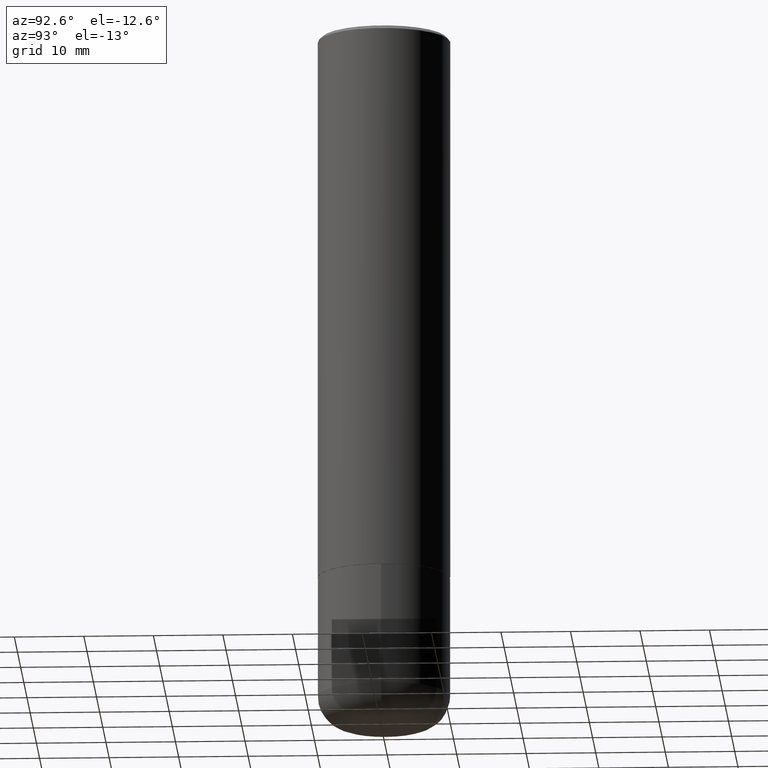
[diagram: clean part render]
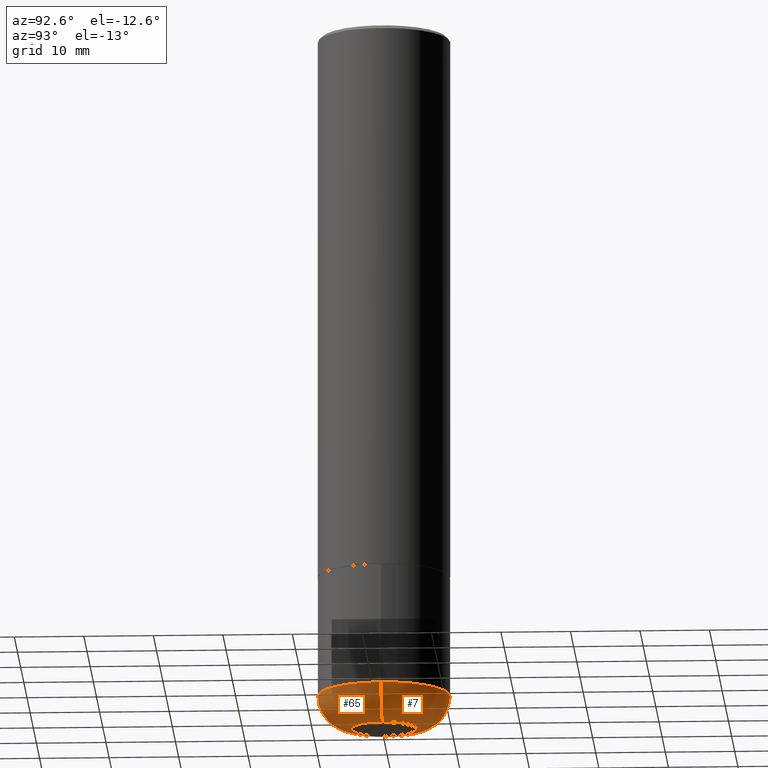
[diagram: same view with one multi-face feature highlighted, each face labeled with its STEP entity id]
A machine part, auxiliary view. The highlighted faces form ONE feature: a constant-radius fillet chain: 2 tangent blend faces with common blend radius 4.826 mm. The faces share edges in the B-rep.
Their STEP definitions:
[1] entity #65 (Torus):
#5 = CARTESIAN_POINT ( 'NONE',  ( 0.1850000000000000533, -1.459439199636434413E-14, -3.810000000000000053 ) ) ;
#15 = FACE_OUTER_BOUND ( 'NONE', #168, .T. ) ;
#24 = ORIENTED_EDGE ( 'NONE', *, *, #343, .T. ) ;
#31 = AXIS2_PLACEMENT_3D ( 'NONE', #143, #231, #396 ) ;
#40 = AXIS2_PLACEMENT_3D ( 'NONE', #288, #331, #161 ) ;
#61 = ORIENTED_EDGE ( 'NONE', *, *, #205, .F. ) ;
#65 = ADVANCED_FACE ( 'NONE', ( #15 ), #247, .T. ) ;
#74 = EDGE_CURVE ( 'NONE', #346, #149, #353, .T. ) ;
#76 = DIRECTION ( 'NONE',  ( -6.982962677686266711E-15, -1.000000000000000000, 3.491481338843145583E-15 ) ) ;
#89 = CIRCLE ( 'NONE', #40, 0.1899999999999999190 ) ;
#96 = VERTEX_POINT ( 'NONE', #115 ) ;
#115 = CARTESIAN_POINT ( 'NONE',  ( 0.3750000000000000555, -1.592115490512473417E-14, -3.810000000000000053 ) ) ;
#131 = DIRECTION ( 'NONE',  ( 1.000000000000000000, -6.982962677686264344E-15, 0.000000000000000000 ) ) ;
#143 = CARTESIAN_POINT ( 'NONE',  ( 9.317236151565370389E-29, -1.330254390099238573E-14, -3.810000000000000053 ) ) ;
#147 = CARTESIAN_POINT ( 'NONE',  ( -0.3750000000000000555, -1.063800864189200846E-14, -3.810000000000000053 ) ) ;
#149 = VERTEX_POINT ( 'NONE', #188 ) ;
#161 = DIRECTION ( 'NONE',  ( -1.000000000000000000, 7.105427357601001070E-15, 0.000000000000000000 ) ) ;
#168 = EDGE_LOOP ( 'NONE', ( #408, #410, #24, #61 ) ) ;
#173 = DIRECTION ( 'NONE',  ( 1.000000000000000000, -6.982962677686272233E-15, 0.000000000000000000 ) ) ;
#188 = CARTESIAN_POINT ( 'NONE',  ( 0.1850000000000000810, -1.525777345074454388E-14, -4.000000000000000000 ) ) ;
#201 = DIRECTION ( 'NONE',  ( -2.445468806185136597E-29, 3.491481338843145583E-15, 1.000000000000000000 ) ) ;
#205 = EDGE_CURVE ( 'NONE', #213, #96, #222, .T. ) ;
#213 = VERTEX_POINT ( 'NONE', #147 ) ;
#222 = CIRCLE ( 'NONE', #402, 0.3750000000000001110 ) ;
#231 = DIRECTION ( 'NONE',  ( -2.445468806185136597E-29, 3.491481338843145583E-15, 1.000000000000000000 ) ) ;
#243 = DIRECTION ( 'NONE',  ( 1.000000000000000000, -6.982962677686265922E-15, 0.000000000000000000 ) ) ;
#247 = TOROIDAL_SURFACE ( 'NONE', #31, 0.1850000000000000533, 0.1899999999999999467 ) ;
#253 = CARTESIAN_POINT ( 'NONE',  ( -0.1850000000000000810, -1.164471496805420174E-14, -4.000000000000000000 ) ) ;
#254 = AXIS2_PLACEMENT_3D ( 'NONE', #370, #201, #173 ) ;
#288 = CARTESIAN_POINT ( 'NONE',  ( -0.1850000000000000533, -1.198803983983620001E-14, -3.810000000000000053 ) ) ;
#309 = DIRECTION ( 'NONE',  ( -2.445468806185136597E-29, 3.491481338843145583E-15, 1.000000000000000000 ) ) ;
#328 = CIRCLE ( 'NONE', #393, 0.1899999999999999190 ) ;
#331 = DIRECTION ( 'NONE',  ( 7.105427357601001859E-15, 1.000000000000000000, -3.491481338843145583E-15 ) ) ;
#343 = EDGE_CURVE ( 'NONE', #149, #96, #328, .T. ) ;
#346 = VERTEX_POINT ( 'NONE', #253 ) ;
#353 = CIRCLE ( 'NONE', #254, 0.1850000000000000810 ) ;
#370 = CARTESIAN_POINT ( 'NONE',  ( 9.781875224740546387E-29, -1.396592535537258233E-14, -4.000000000000000000 ) ) ;
#388 = EDGE_CURVE ( 'NONE', #346, #213, #89, .T. ) ;
#393 = AXIS2_PLACEMENT_3D ( 'NONE', #5, #76, #131 ) ;
#396 = DIRECTION ( 'NONE',  ( 1.000000000000000000, -6.982962677686263555E-15, 4.883557194083111219E-29 ) ) ;
#402 = AXIS2_PLACEMENT_3D ( 'NONE', #409, #309, #243 ) ;
#408 = ORIENTED_EDGE ( 'NONE', *, *, #388, .F. ) ;
#409 = CARTESIAN_POINT ( 'NONE',  ( 9.317236151565370389E-29, -1.330254390099238573E-14, -3.810000000000000053 ) ) ;
#410 = ORIENTED_EDGE ( 'NONE', *, *, #74, .T. ) ;
[2] entity #7 (Torus):
#5 = CARTESIAN_POINT ( 'NONE',  ( 0.1850000000000000533, -1.459439199636434413E-14, -3.810000000000000053 ) ) ;
#6 = AXIS2_PLACEMENT_3D ( 'NONE', #102, #212, #210 ) ;
#7 = ADVANCED_FACE ( 'NONE', ( #255 ), #141, .T. ) ;
#10 = CARTESIAN_POINT ( 'NONE',  ( 9.317236151565370389E-29, -1.330254390099238573E-14, -3.810000000000000053 ) ) ;
#13 = AXIS2_PLACEMENT_3D ( 'NONE', #50, #174, #233 ) ;
#40 = AXIS2_PLACEMENT_3D ( 'NONE', #288, #331, #161 ) ;
#50 = CARTESIAN_POINT ( 'NONE',  ( 9.781875224740546387E-29, -1.396592535537258233E-14, -4.000000000000000000 ) ) ;
#59 = AXIS2_PLACEMENT_3D ( 'NONE', #10, #140, #263 ) ;
#68 = ORIENTED_EDGE ( 'NONE', *, *, #248, .F. ) ;
#76 = DIRECTION ( 'NONE',  ( -6.982962677686266711E-15, -1.000000000000000000, 3.491481338843145583E-15 ) ) ;
#88 = CIRCLE ( 'NONE', #13, 0.1850000000000000810 ) ;
#89 = CIRCLE ( 'NONE', #40, 0.1899999999999999190 ) ;
#96 = VERTEX_POINT ( 'NONE', #115 ) ;
#102 = CARTESIAN_POINT ( 'NONE',  ( 9.317236151565370389E-29, -1.330254390099238573E-14, -3.810000000000000053 ) ) ;
#110 = EDGE_CURVE ( 'NONE', #149, #346, #88, .T. ) ;
#115 = CARTESIAN_POINT ( 'NONE',  ( 0.3750000000000000555, -1.592115490512473417E-14, -3.810000000000000053 ) ) ;
#131 = DIRECTION ( 'NONE',  ( 1.000000000000000000, -6.982962677686264344E-15, 0.000000000000000000 ) ) ;
#140 = DIRECTION ( 'NONE',  ( -2.445468806185136597E-29, 3.491481338843145583E-15, 1.000000000000000000 ) ) ;
#141 = TOROIDAL_SURFACE ( 'NONE', #59, 0.1850000000000000533, 0.1899999999999999467 ) ;
#147 = CARTESIAN_POINT ( 'NONE',  ( -0.3750000000000000555, -1.063800864189200846E-14, -3.810000000000000053 ) ) ;
#149 = VERTEX_POINT ( 'NONE', #188 ) ;
#161 = DIRECTION ( 'NONE',  ( -1.000000000000000000, 7.105427357601001070E-15, 0.000000000000000000 ) ) ;
#174 = DIRECTION ( 'NONE',  ( -2.445468806185136597E-29, 3.491481338843145583E-15, 1.000000000000000000 ) ) ;
#188 = CARTESIAN_POINT ( 'NONE',  ( 0.1850000000000000810, -1.525777345074454388E-14, -4.000000000000000000 ) ) ;
#196 = ORIENTED_EDGE ( 'NONE', *, *, #343, .F. ) ;
#210 = DIRECTION ( 'NONE',  ( 1.000000000000000000, -6.982962677686265922E-15, 0.000000000000000000 ) ) ;
#212 = DIRECTION ( 'NONE',  ( -2.445468806185136597E-29, 3.491481338843145583E-15, 1.000000000000000000 ) ) ;
#213 = VERTEX_POINT ( 'NONE', #147 ) ;
#233 = DIRECTION ( 'NONE',  ( 1.000000000000000000, -6.982962677686272233E-15, 0.000000000000000000 ) ) ;
#248 = EDGE_CURVE ( 'NONE', #96, #213, #366, .T. ) ;
#253 = CARTESIAN_POINT ( 'NONE',  ( -0.1850000000000000810, -1.164471496805420174E-14, -4.000000000000000000 ) ) ;
#255 = FACE_OUTER_BOUND ( 'NONE', #374, .T. ) ;
#263 = DIRECTION ( 'NONE',  ( 1.000000000000000000, -6.982962677686263555E-15, 4.883557194083111219E-29 ) ) ;
#288 = CARTESIAN_POINT ( 'NONE',  ( -0.1850000000000000533, -1.198803983983620001E-14, -3.810000000000000053 ) ) ;
#328 = CIRCLE ( 'NONE', #393, 0.1899999999999999190 ) ;
#331 = DIRECTION ( 'NONE',  ( 7.105427357601001859E-15, 1.000000000000000000, -3.491481338843145583E-15 ) ) ;
#343 = EDGE_CURVE ( 'NONE', #149, #96, #328, .T. ) ;
#346 = VERTEX_POINT ( 'NONE', #253 ) ;
#351 = ORIENTED_EDGE ( 'NONE', *, *, #110, .T. ) ;
#366 = CIRCLE ( 'NONE', #6, 0.3750000000000001110 ) ;
#374 = EDGE_LOOP ( 'NONE', ( #351, #380, #68, #196 ) ) ;
#380 = ORIENTED_EDGE ( 'NONE', *, *, #388, .T. ) ;
#388 = EDGE_CURVE ( 'NONE', #346, #213, #89, .T. ) ;
#393 = AXIS2_PLACEMENT_3D ( 'NONE', #5, #76, #131 ) ;